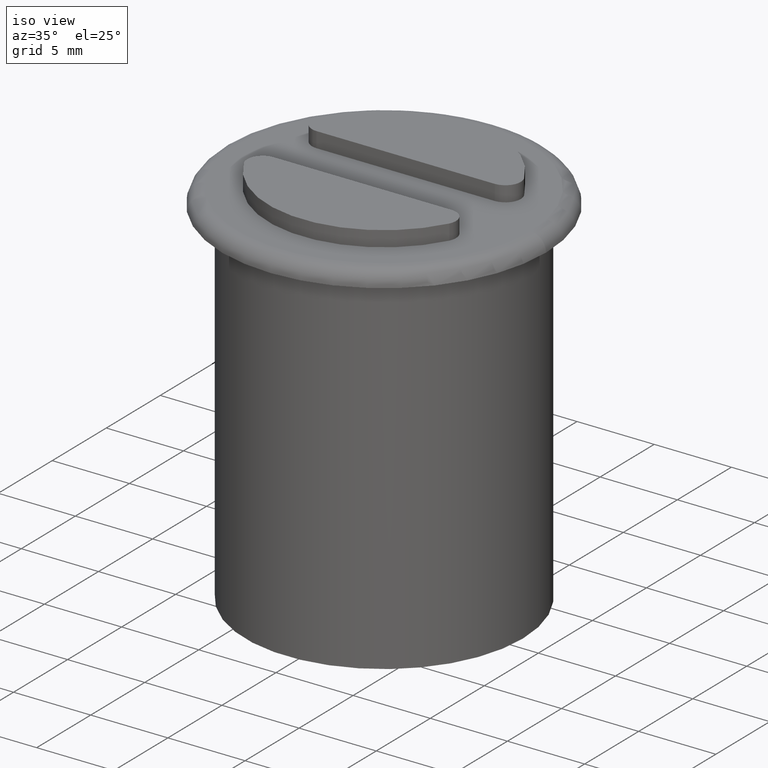
[diagram: clean part render]
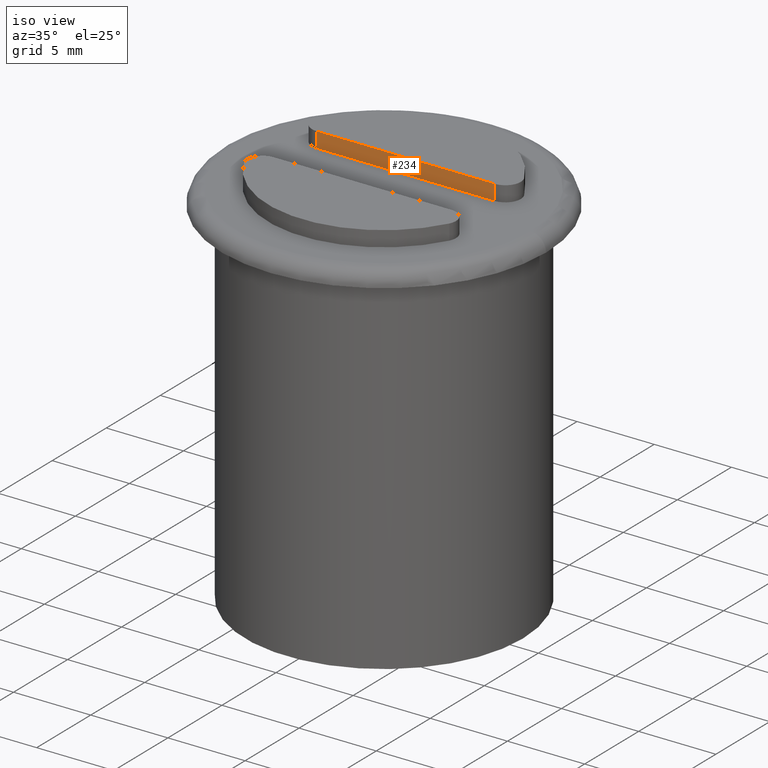
[diagram: same view with one face highlighted and labeled with its STEP entity id]
A machine part, iso view. The second image highlights one B-rep face of the part: STEP entity #234.
In plain terms, the highlighted planar face has unit normal (0, 1, 0).
Its self-contained STEP definition (entity closure, byte-faithful):
#22=PLANE('',#258);
#32=FACE_OUTER_BOUND('',#47,.T.);
#47=EDGE_LOOP('',(#170,#171,#172,#173));
#69=LINE('',#385,#81);
#70=LINE('',#388,#82);
#71=LINE('',#390,#83);
#72=LINE('',#391,#84);
#81=VECTOR('',#310,1.);
#82=VECTOR('',#313,11.5325625946708);
#83=VECTOR('',#314,1.);
#84=VECTOR('',#315,11.5325625946708);
#110=VERTEX_POINT('',#378);
#113=VERTEX_POINT('',#383);
#114=VERTEX_POINT('',#387);
#115=VERTEX_POINT('',#389);
#136=EDGE_CURVE('',#113,#110,#69,.T.);
#137=EDGE_CURVE('',#113,#114,#70,.T.);
#138=EDGE_CURVE('',#115,#114,#71,.T.);
#139=EDGE_CURVE('',#110,#115,#72,.T.);
#170=ORIENTED_EDGE('',*,*,#136,.F.);
#171=ORIENTED_EDGE('',*,*,#137,.T.);
#172=ORIENTED_EDGE('',*,*,#138,.F.);
#173=ORIENTED_EDGE('',*,*,#139,.F.);
#234=ADVANCED_FACE('',(#32),#22,.F.);
#258=AXIS2_PLACEMENT_3D('',#386,#311,#312);
#310=DIRECTION('',(0.,0.,1.));
#311=DIRECTION('center_axis',(0.,1.,0.));
#312=DIRECTION('ref_axis',(1.,0.,0.));
#313=DIRECTION('',(1.,0.,0.));
#314=DIRECTION('',(0.,0.,-1.));
#315=DIRECTION('',(1.,0.,0.));
#378=CARTESIAN_POINT('',(-5.7662812973354,2.,25.));
#383=CARTESIAN_POINT('',(-5.7662812973354,2.,24.));
#385=CARTESIAN_POINT('',(-5.7662812973354,2.,24.));
#386=CARTESIAN_POINT('Origin',(-8.,2.,25.));
#387=CARTESIAN_POINT('',(5.7662812973354,2.,24.));
#388=CARTESIAN_POINT('',(-8.,2.,24.));
#389=CARTESIAN_POINT('',(5.7662812973354,2.,25.));
#390=CARTESIAN_POINT('',(5.7662812973354,2.,24.));
#391=CARTESIAN_POINT('',(-4.,2.,25.));